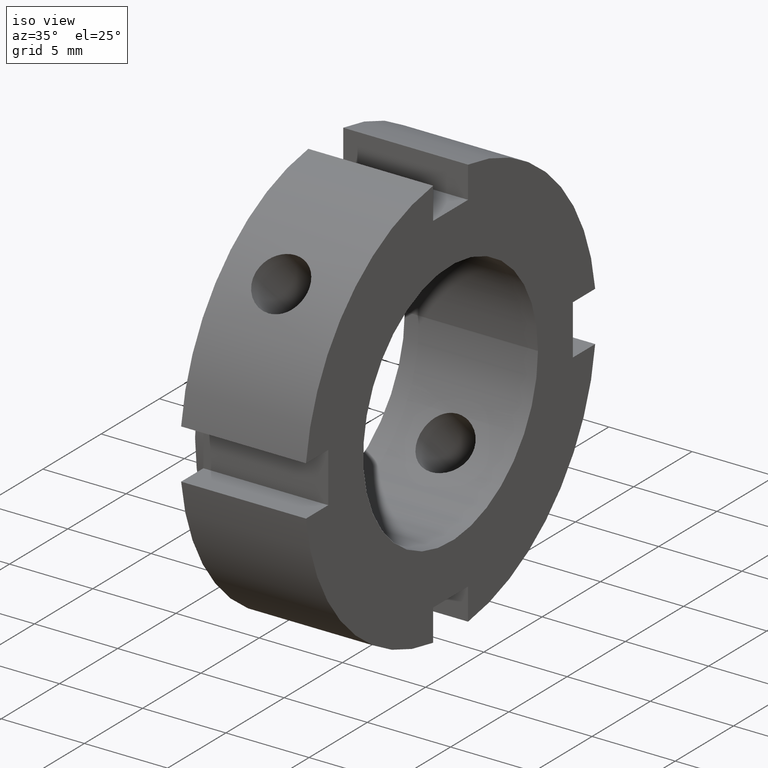
[diagram: clean part render]
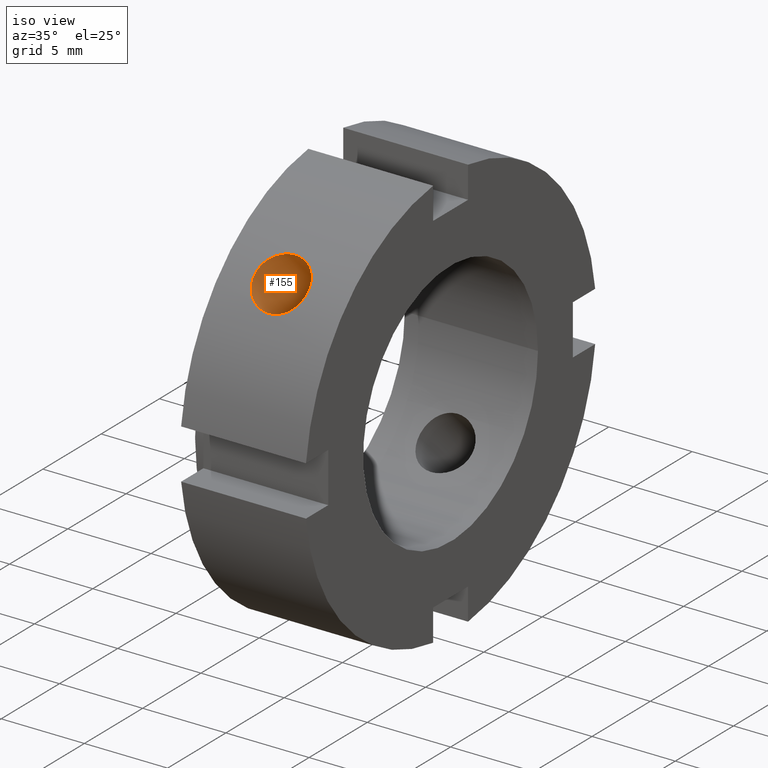
[diagram: same view with one face highlighted and labeled with its STEP entity id]
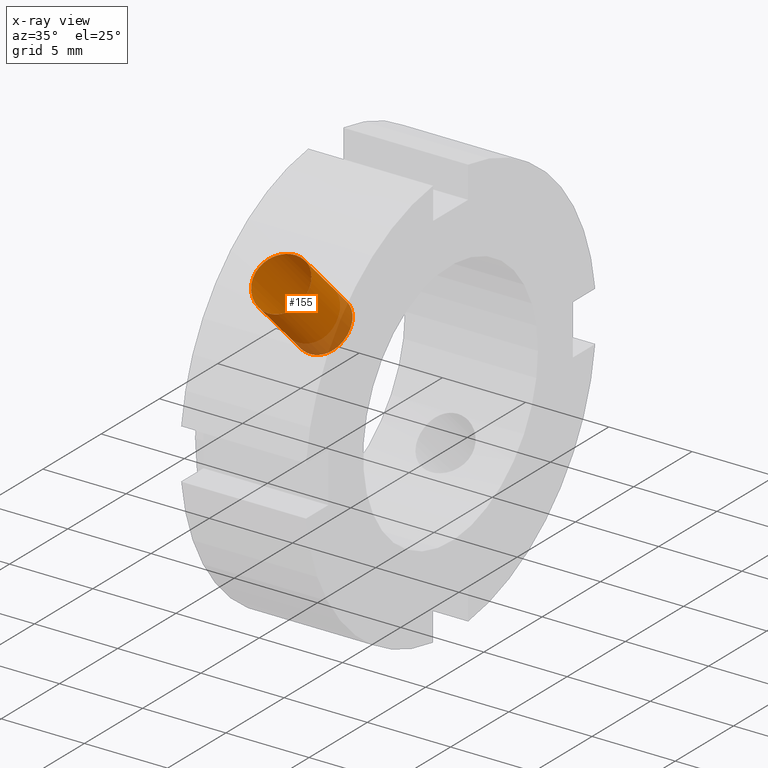
[diagram: x-ray of the same camera — body ghosted, the highlighted face saturated]
A machine part, iso view. The second image highlights one B-rep face of the part: STEP entity #155.
The next image is the same camera in x-ray: the body ghosted, the highlighted face saturated — about 17% of this face is hidden behind the body in this view.
In plain terms, the highlighted cylindrical surface (bore or boss wall) has radius 1.621 mm, axis along (0, -0.7071, 0.7071).
Its self-contained STEP definition (entity closure, byte-faithful):
#68=CARTESIAN_POINT('',(3.999999999999997,-25.455844122715700,25.455844122715710));
#69=DIRECTION('',(0.0,-0.707106781186547,0.707106781186548));
#70=DIRECTION('',(1.0,0.0,0.0));
#71=AXIS2_PLACEMENT_3D('',#68,#69,#70);
#72=CYLINDRICAL_SURFACE('',#71,1.621000000000000);
#73=CARTESIAN_POINT('',(3.999999999999997,-9.910418829210258,7.617978644603477));
#74=VERTEX_POINT('',#73);
#75=CARTESIAN_POINT('',(3.999999999999996,-9.910418829210260,7.617978644603477));
#76=CARTESIAN_POINT('',(3.796216038298108,-9.910418829210260,7.617978644603477));
#77=CARTESIAN_POINT('',(3.579007529202468,-9.885508267689788,7.650730264119707));
#78=CARTESIAN_POINT('',(3.179695632844754,-9.782603362870969,7.781877580564233));
#79=CARTESIAN_POINT('',(2.997572420102122,-9.704409570854329,7.880056249642752));
#80=CARTESIAN_POINT('',(2.709988788370192,-9.519783051130409,8.102134402230634));
#81=CARTESIAN_POINT('',(2.585273533294963,-9.400957714627671,8.240871038474817));
#82=CARTESIAN_POINT('',(2.419772821239338,-9.132637006172455,8.537265530439184));
#83=CARTESIAN_POINT('',(2.378999999999997,-8.982930390019078,8.694739139644607));
#84=CARTESIAN_POINT('',(2.378999999999997,-8.694739139644600,8.982930390019083));
#85=CARTESIAN_POINT('',(2.419772821239337,-8.537265530439175,9.132637006172462));
#86=CARTESIAN_POINT('',(2.585273533294961,-8.240871038474811,9.400957714627676));
#87=CARTESIAN_POINT('',(2.709988788370192,-8.102134402230629,9.519783051130414));
#88=CARTESIAN_POINT('',(2.997572420102121,-7.880056249642746,9.704409570854335));
#89=CARTESIAN_POINT('',(3.179695632844754,-7.781877580564226,9.782603362870974));
#90=CARTESIAN_POINT('',(3.579007529202469,-7.650730264119700,9.885508267689794));
#91=CARTESIAN_POINT('',(3.796216038298108,-7.617978644603472,9.910418829210265));
#92=CARTESIAN_POINT('',(4.203783961701886,-7.617978644603472,9.910418829210265));
#93=CARTESIAN_POINT('',(4.420992470797525,-7.650730264119700,9.885508267689794));
#94=CARTESIAN_POINT('',(4.820304367155241,-7.781877580564226,9.782603362870974));
#95=CARTESIAN_POINT('',(5.002427579897873,-7.880056249642746,9.704409570854335));
#96=CARTESIAN_POINT('',(5.290011211629801,-8.102134402230629,9.519783051130414));
#97=CARTESIAN_POINT('',(5.414726466705031,-8.240871038474808,9.400957714627678));
#98=CARTESIAN_POINT('',(5.580227178760656,-8.537265530439175,9.132637006172461));
#99=CARTESIAN_POINT('',(5.620999999999997,-8.694739139644600,8.982930390019083));
#100=CARTESIAN_POINT('',(5.620999999999997,-8.982930390019078,8.694739139644607));
#101=CARTESIAN_POINT('',(5.580227178760656,-9.132637006172455,8.537265530439184));
#102=CARTESIAN_POINT('',(5.414726466705032,-9.400957714627671,8.240871038474820));
#103=CARTESIAN_POINT('',(5.290011211629802,-9.519783051130409,8.102134402230636));
#104=CARTESIAN_POINT('',(5.002427579897873,-9.704409570854329,7.880056249642752));
#105=CARTESIAN_POINT('',(4.820304367155241,-9.782603362870969,7.781877580564234));
#106=CARTESIAN_POINT('',(4.420992470797526,-9.885508267689788,7.650730264119707));
#107=CARTESIAN_POINT('',(4.203783961701887,-9.910418829210260,7.617978644603477));
#108=CARTESIAN_POINT('',(3.999999999999997,-9.910418829210260,7.617978644603477));
#109=B_SPLINE_CURVE_WITH_KNOTS('',3,(#75,#76,#77,#78,#79,#80,#81,#82,#83,#84,#85,#86,#87,#88,#89,#90,#91,#92,#93,#94,#95,#96,#97,#98,#99,#100,#101,#102,#103,#104,#105,#106,#107,#108),.UNSPECIFIED.,.T.,.U.,(4,2,2,2,2,2,2,2,2,2,2,2,2,2,2,2,4),(0.0,0.061135188510567,0.122270377021133,0.183404973246660,0.244539569472187,0.305674165697714,0.366808761923241,0.427943950433807,0.489079138944374,0.550214327454940,0.611349515965507,0.672484112191034,0.733618708416561,0.794753304642088,0.855887900867615,0.917023089378181,0.978158277888748),.UNSPECIFIED.);
#110=EDGE_CURVE('',#74,#74,#109,.T.);
#111=ORIENTED_EDGE('',*,*,#110,.F.);
#112=EDGE_LOOP('',(#111));
#113=FACE_OUTER_BOUND('',#112,.T.);
#114=CARTESIAN_POINT('',(3.999999999999997,-6.324171376353871,4.031731191747086));
#115=VERTEX_POINT('',#114);
#116=CARTESIAN_POINT('',(3.999999999999997,-6.324171376353870,4.031731191747088));
#117=CARTESIAN_POINT('',(4.204239403672410,-6.324171376353870,4.031731191747088));
#118=CARTESIAN_POINT('',(4.421634678388318,-6.301885020609548,4.067356368764484));
#119=CARTESIAN_POINT('',(4.820814424856688,-6.208630451458799,4.208331072357209));
#120=CARTESIAN_POINT('',(5.002656817407534,-6.137316574939787,4.313287444523376));
#121=CARTESIAN_POINT('',(5.289772324510700,-5.965691695416834,4.547705209113352));
#122=CARTESIAN_POINT('',(5.414422851442749,-5.853754513232757,4.692938598354518));
#123=CARTESIAN_POINT('',(5.580054235911417,-5.594941590962876,4.998674142246283));
#124=CARTESIAN_POINT('',(5.620999999999996,-5.447708817706445,5.158892900091770));
#125=CARTESIAN_POINT('',(5.620999999999999,-5.158892900091763,5.447708817706454));
#126=CARTESIAN_POINT('',(5.580054235911417,-4.998674142246277,5.594941590962880));
#127=CARTESIAN_POINT('',(5.414422851442749,-4.692938598354512,5.853754513232762));
#128=CARTESIAN_POINT('',(5.289772324510700,-4.547705209113346,5.965691695416839));
#129=CARTESIAN_POINT('',(5.002656817407533,-4.313287444523370,6.137316574939793));
#130=CARTESIAN_POINT('',(4.820814424856689,-4.208331072357198,6.208630451458804));
#131=CARTESIAN_POINT('',(4.421634678388319,-4.067356368764472,6.301885020609554));
#132=CARTESIAN_POINT('',(4.204239403672410,-4.031731191747082,6.324171376353874));
#133=CARTESIAN_POINT('',(3.795760596327584,-4.031731191747082,6.324171376353874));
#134=CARTESIAN_POINT('',(3.578365321611675,-4.067356368764472,6.301885020609554));
#135=CARTESIAN_POINT('',(3.179185575143305,-4.208331072357198,6.208630451458804));
#136=CARTESIAN_POINT('',(2.997343182592461,-4.313287444523370,6.137316574939793));
#137=CARTESIAN_POINT('',(2.710227675489293,-4.547705209113346,5.965691695416839));
#138=CARTESIAN_POINT('',(2.585577148557245,-4.692938598354512,5.853754513232762));
#139=CARTESIAN_POINT('',(2.419945764088577,-4.998674142246277,5.594941590962881));
#140=CARTESIAN_POINT('',(2.378999999999996,-5.158892900091763,5.447708817706454));
#141=CARTESIAN_POINT('',(2.378999999999997,-5.447708817706445,5.158892900091770));
#142=CARTESIAN_POINT('',(2.419945764088577,-5.594941590962876,4.998674142246284));
#143=CARTESIAN_POINT('',(2.585577148557245,-5.853754513232757,4.692938598354519));
#144=CARTESIAN_POINT('',(2.710227675489294,-5.965691695416834,4.547705209113352));
#145=CARTESIAN_POINT('',(2.997343182592461,-6.137316574939787,4.313287444523376));
#146=CARTESIAN_POINT('',(3.179185575143306,-6.208630451458799,4.208331072357209));
#147=CARTESIAN_POINT('',(3.578365321611676,-6.301885020609548,4.067356368764484));
#148=CARTESIAN_POINT('',(3.795760596327584,-6.324171376353870,4.031731191747088));
#149=CARTESIAN_POINT('',(3.999999999999997,-6.324171376353870,4.031731191747088));
#150=B_SPLINE_CURVE_WITH_KNOTS('',3,(#116,#117,#118,#119,#120,#121,#122,#123,#124,#125,#126,#127,#128,#129,#130,#131,#132,#133,#134,#135,#136,#137,#138,#139,#140,#141,#142,#143,#144,#145,#146,#147,#148,#149),.UNSPECIFIED.,.T.,.U.,(4,2,2,2,2,2,2,2,2,2,2,2,2,2,2,2,4),(0.0,0.061271821101724,0.122543642203448,0.183810750361435,0.245077858519422,0.306344966677410,0.367612074835397,0.428883895937121,0.490155717038844,0.551427538140568,0.612699359242292,0.673966467400279,0.735233575558267,0.796500683716254,0.857767791874241,0.919039612975965,0.980311434077689),.UNSPECIFIED.);
#151=EDGE_CURVE('',#115,#115,#150,.T.);
#152=ORIENTED_EDGE('',*,*,#151,.F.);
#153=EDGE_LOOP('',(#152));
#154=FACE_BOUND('',#153,.T.);
#155=ADVANCED_FACE('',(#113,#154),#72,.F.);